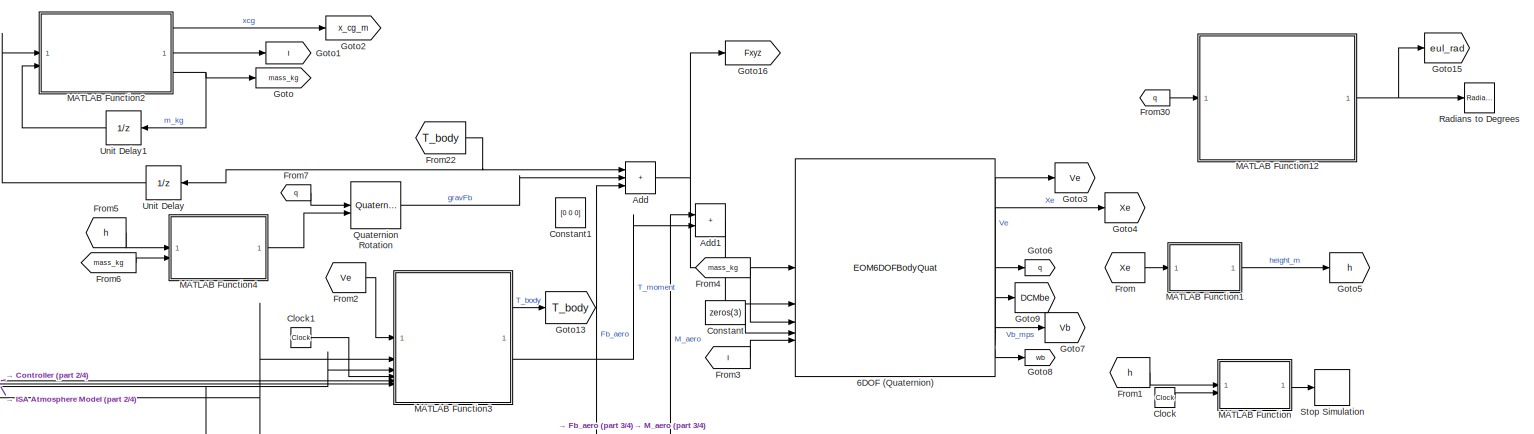
[diagram: root canvas - part 1/4, top right region]
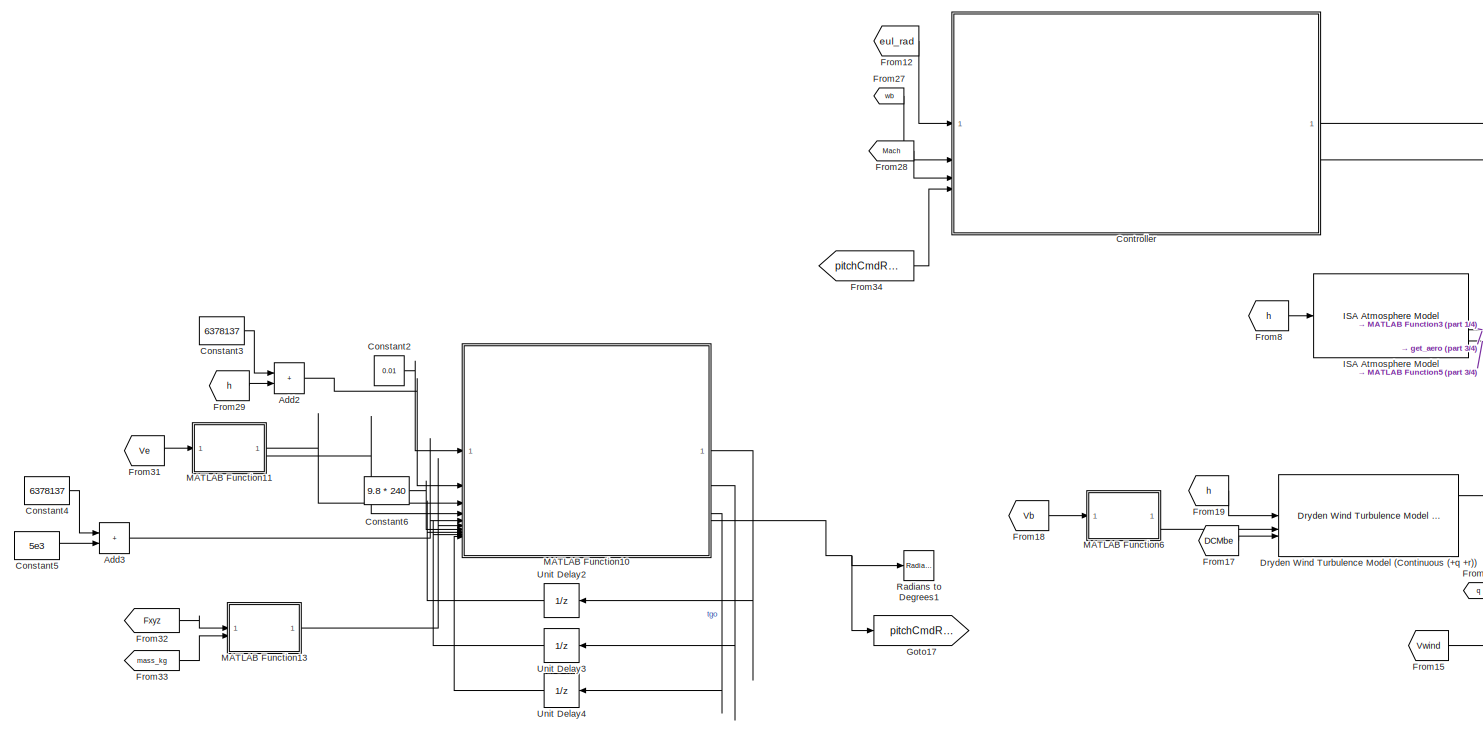
[diagram: root canvas - part 2/4, left side, full height]
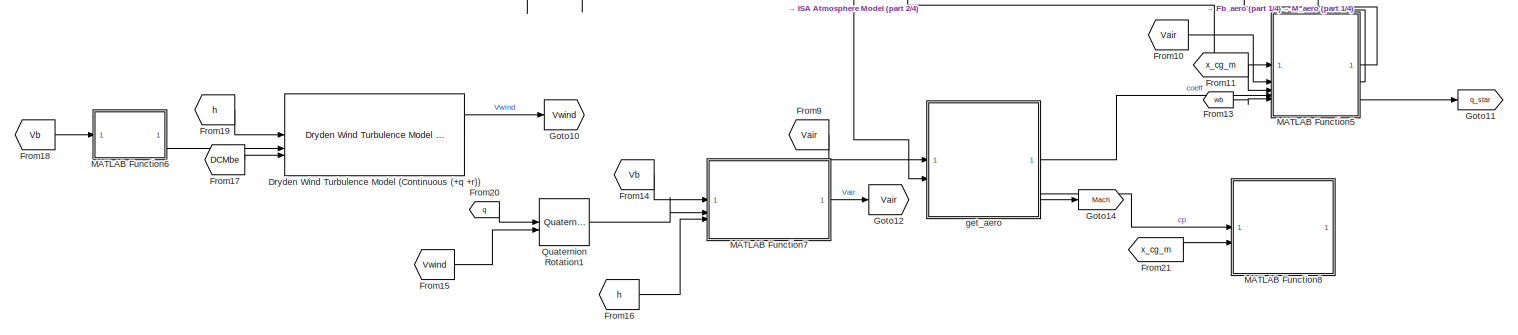
[diagram: root canvas - part 3/4, bottom center region]
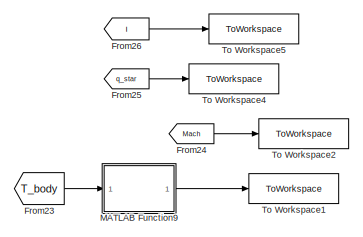
[diagram: root canvas - part 4/4, bottom right region]
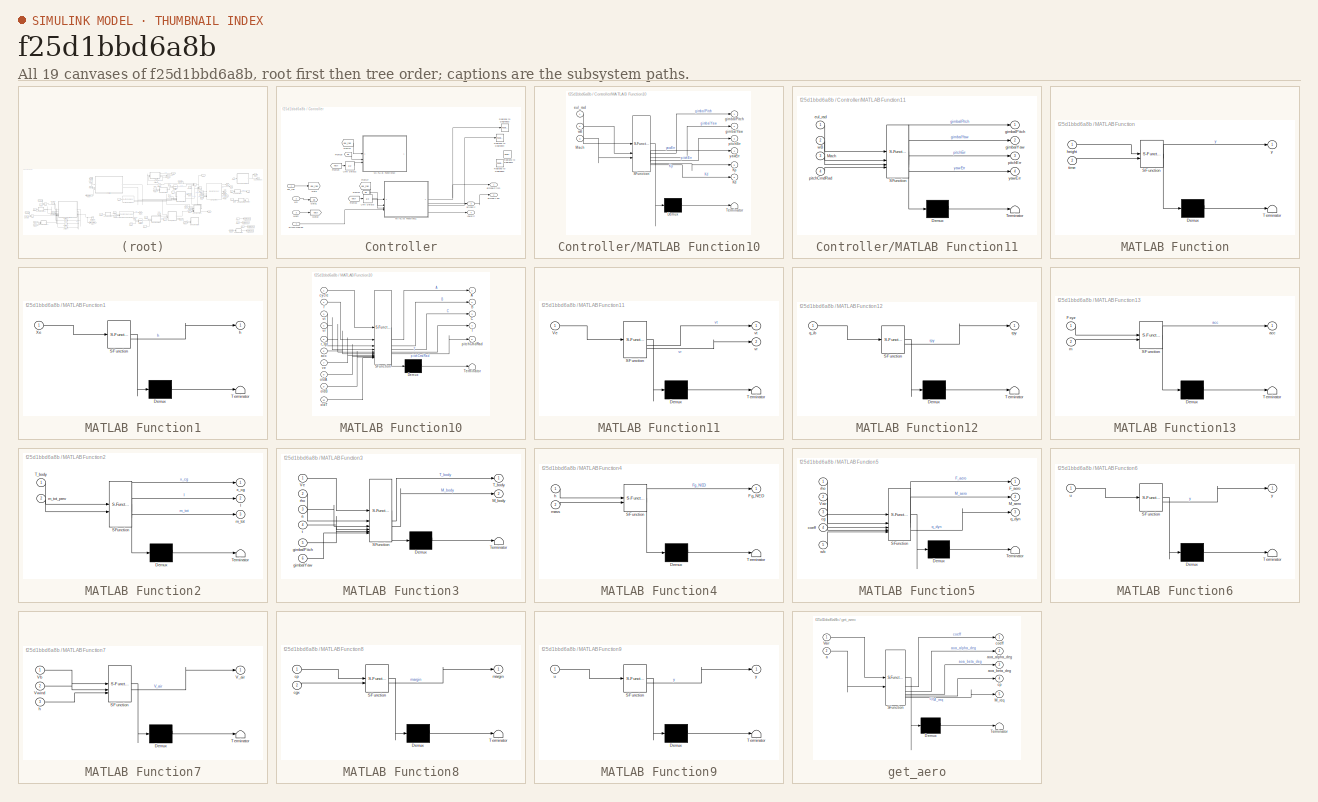
[diagram: thumbnail index - all 19 canvases of the model, root first then tree order]
MODEL slx_f25d1bbd6a8b
KIND model
CONFIG AbsTol = auto
CONFIG EnableMultiTasking = off
CONFIG FixedStep = 0.01
CONFIG MaxStep = auto
CONFIG MinStep = auto
CONFIG RelTol = 1e-3
CONFIG SampleTimeConstraint = Unconstrained
CONFIG SolverName = FixedStepAuto
CONFIG StartTime = 0.0
CONFIG StopTime = 90
WORKSPACE source: mxarray member
WORKSPACE aero_data: object (value not decoded)
WORKSPACE d_body_mc = 0.4
WORKSPACE designFocus: string (value not decoded)
WORKSPACE drydenSeed_mc = [23341 23342 23343 23344]
WORKSPACE m_initial_mc = [0 20 25 25 20 25 70 1 10 15 1 20 ... (21 elements, 1x21)]
WORKSPACE schedule: object (value not decoded)
WORKSPACE x_mc = [0 0.3 0.7 1.1 1.2 2.2 2.3 2.9 3.1 3.3 3.4 4 ... (21 elements, 1x21)]
BLOCK [EOM6DOFBodyQuat] 6DOF (Quaternion)
  Vm_0 = [0.1 0 0]
  eul_0 = [0 deg2rad(90) 0]
  mtype = Custom Variable
BLOCK [Sum] Add
  IconShape = rectangular
  Inputs = +++
BLOCK [Sum] Add1
  IconShape = rectangular
BLOCK [Sum] Add2
  IconShape = rectangular
BLOCK [Sum] Add3
  IconShape = rectangular
BLOCK [Clock] Clock
BLOCK [Clock] Clock1
BLOCK [Constant] Constant
  Value = zeros(3)
BLOCK [Constant] Constant1
  Value = [0 0 0]
BLOCK [Constant] Constant2
  Value = 0.01
BLOCK [Constant] Constant3
  Value = 6378137
BLOCK [Constant] Constant4
  Value = 6378137
BLOCK [Constant] Constant5
  Value = 5e3
BLOCK [Constant] Constant6
  Value = 9.8 * 240
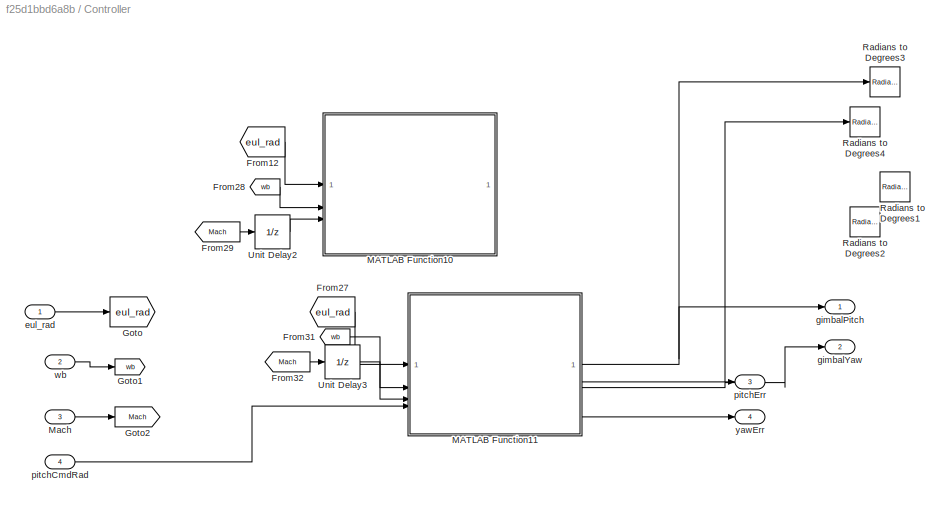
BLOCK [SubSystem] Controller
BLOCK [From] Controller/From12
  Commented = on
  GotoTag = eul_rad
BLOCK [From] Controller/From27
  GotoTag = eul_rad
BLOCK [From] Controller/From28
  Commented = on
  GotoTag = wb
BLOCK [From] Controller/From29
  Commented = on
  GotoTag = Mach
BLOCK [From] Controller/From31
  GotoTag = wb
BLOCK [From] Controller/From32
  GotoTag = Mach
BLOCK [Goto] Controller/Goto
  GotoTag = eul_rad
BLOCK [Goto] Controller/Goto1
  GotoTag = wb
BLOCK [Goto] Controller/Goto2
  GotoTag = Mach
BLOCK [SubSystem] Controller/MATLAB Function10
  Commented = on
  ErrorFcn = Stateflow.Translate.translate
  PermitHierarchicalResolution = ExplicitOnly
  SFBlockType = MATLAB Function
  TreatAsAtomicUnit = on
BLOCK [Demux] Controller/MATLAB Function10/ Demux 
  Outputs = 1
BLOCK [S-Function] Controller/MATLAB Function10/ SFunction 
  EnableBusSupport = off
  FunctionName = sf_sfun
  Parameters = schedule
  PortCounts = [3 7]
  SFcnIsStateOwnerBlock = off
  SFunctionDeploymentMode = off
  Tag = Stateflow S-Function 12
BLOCK [Terminator] Controller/MATLAB Function10/ Terminator 
BLOCK [Outport] Controller/MATLAB Function10/Kd
  Port = 6
BLOCK [Outport] Controller/MATLAB Function10/Kp
  Port = 5
BLOCK [Inport] Controller/MATLAB Function10/Mach
  Port = 3
BLOCK [Inport] Controller/MATLAB Function10/eul_rad
BLOCK [Outport] Controller/MATLAB Function10/gimbalPitch
BLOCK [Outport] Controller/MATLAB Function10/gimbalYaw
  Port = 2
BLOCK [Outport] Controller/MATLAB Function10/pitchErr
  Port = 3
BLOCK [Inport] Controller/MATLAB Function10/wB
  Port = 2
BLOCK [Outport] Controller/MATLAB Function10/yawErr
  Port = 4
BLOCK [SubSystem] Controller/MATLAB Function11
  ErrorFcn = Stateflow.Translate.translate
  PermitHierarchicalResolution = ExplicitOnly
  SFBlockType = MATLAB Function
  TreatAsAtomicUnit = on
BLOCK [Demux] Controller/MATLAB Function11/ Demux 
  Outputs = 1
BLOCK [S-Function] Controller/MATLAB Function11/ SFunction 
  EnableBusSupport = off
  FunctionName = sf_sfun
  Parameters = schedule
  PortCounts = [4 5]
  SFcnIsStateOwnerBlock = off
  SFunctionDeploymentMode = off
  Tag = Stateflow S-Function 13
BLOCK [Terminator] Controller/MATLAB Function11/ Terminator 
BLOCK [Inport] Controller/MATLAB Function11/Mach
  Port = 3
BLOCK [Inport] Controller/MATLAB Function11/eul_rad
BLOCK [Outport] Controller/MATLAB Function11/gimbalPitch
BLOCK [Outport] Controller/MATLAB Function11/gimbalYaw
  Port = 2
BLOCK [Inport] Controller/MATLAB Function11/pitchCmdRad
  Port = 4
BLOCK [Outport] Controller/MATLAB Function11/pitchErr
  Port = 3
BLOCK [Inport] Controller/MATLAB Function11/wB
  Port = 2
BLOCK [Outport] Controller/MATLAB Function11/yawErr
  Port = 4
BLOCK [Inport] Controller/Mach
  Port = 3
BLOCK [Reference] Controller/Radians to Degrees1  REF=simulink_extras/Transformations/Radians
to Degrees
  Commented = on
  SourceBlock = simulink_extras/Transformations/Radians\nto Degrees
  SourceType = RadiansToDegrees
BLOCK [Reference] Controller/Radians to Degrees2  REF=simulink_extras/Transformations/Radians
to Degrees
  Commented = on
  SourceBlock = simulink_extras/Transformations/Radians\nto Degrees
  SourceType = RadiansToDegrees
BLOCK [Reference] Controller/Radians to Degrees3  REF=simulink_extras/Transformations/Radians
to Degrees
  SourceBlock = simulink_extras/Transformations/Radians\nto Degrees
  SourceType = RadiansToDegrees
BLOCK [Reference] Controller/Radians to Degrees4  REF=simulink_extras/Transformations/Radians
to Degrees
  SourceBlock = simulink_extras/Transformations/Radians\nto Degrees
  SourceType = RadiansToDegrees
BLOCK [UnitDelay] Controller/Unit Delay2
  Commented = on
  HasFrameUpgradeWarning = on
  SampleTime = -1
BLOCK [UnitDelay] Controller/Unit Delay3
  HasFrameUpgradeWarning = on
  SampleTime = -1
BLOCK [Inport] Controller/eul_rad
BLOCK [Outport] Controller/gimbalPitch
BLOCK [Outport] Controller/gimbalYaw
  Port = 2
BLOCK [Inport] Controller/pitchCmdRad
  Port = 4
BLOCK [Outport] Controller/pitchErr
  Port = 3
BLOCK [Inport] Controller/wb
  Port = 2
BLOCK [Outport] Controller/yawErr
  Port = 4
BLOCK [Reference] Dryden Wind Turbulence Model (Continuous (+q +r))  REF=aerolibwind2/Dryden Wind Turbulence Model 
(Continuous (+q -r))
  LibrarySourceBlock = aerolibwind2/Dryden Wind Turbulence Model \n(Continuous (+q +r))
  SourceBlock = aerolibwind2/Dryden Wind Turbulence Model \n(Continuous (+q -r))
  SourceType = Wind Turbulence Model
BLOCK [From] From
  GotoTag = Xe
BLOCK [From] From1
  GotoTag = h
BLOCK [From] From10
  GotoTag = Vair
BLOCK [From] From11
  GotoTag = x_cg_m
BLOCK [From] From12
  GotoTag = eul_rad
BLOCK [From] From13
  GotoTag = wb
BLOCK [From] From14
  GotoTag = Vb
BLOCK [From] From15
  GotoTag = Vwind
BLOCK [From] From16
  GotoTag = h
BLOCK [From] From17
  GotoTag = DCMbe
BLOCK [From] From18
  GotoTag = Vb
BLOCK [From] From19
  GotoTag = h
BLOCK [From] From2
  GotoTag = Ve
BLOCK [From] From20
  GotoTag = q
BLOCK [From] From21
  GotoTag = x_cg_m
BLOCK [From] From22
  GotoTag = T_body
BLOCK [From] From23
  Commented = on
  GotoTag = T_body
BLOCK [From] From24
  Commented = on
  GotoTag = Mach
BLOCK [From] From25
  Commented = on
  GotoTag = q_star
BLOCK [From] From26
  Commented = on
  GotoTag = I
BLOCK [From] From27
  GotoTag = wb
BLOCK [From] From28
  GotoTag = Mach
BLOCK [From] From29
  GotoTag = h
BLOCK [From] From3
  GotoTag = I
BLOCK [From] From30
  GotoTag = q
BLOCK [From] From31
  GotoTag = Ve
BLOCK [From] From32
  GotoTag = Fxyz
BLOCK [From] From33
  GotoTag = mass_kg
BLOCK [From] From34
  GotoTag = pitchCmdRad
BLOCK [From] From4
  GotoTag = mass_kg
BLOCK [From] From5
  GotoTag = h
BLOCK [From] From6
  GotoTag = mass_kg
BLOCK [From] From7
  GotoTag = q
BLOCK [From] From8
  GotoTag = h
BLOCK [From] From9
  GotoTag = Vair
BLOCK [Goto] Goto
  GotoTag = mass_kg
BLOCK [Goto] Goto1
  GotoTag = I
BLOCK [Goto] Goto10
  GotoTag = Vwind
BLOCK [Goto] Goto11
  GotoTag = q_star
BLOCK [Goto] Goto12
  GotoTag = Vair
BLOCK [Goto] Goto13
  GotoTag = T_body
BLOCK [Goto] Goto14
  GotoTag = Mach
BLOCK [Goto] Goto15
  GotoTag = eul_rad
BLOCK [Goto] Goto16
  GotoTag = Fxyz
BLOCK [Goto] Goto17
  GotoTag = pitchCmdRad
BLOCK [Goto] Goto2
  GotoTag = x_cg_m
BLOCK [Goto] Goto3
  GotoTag = Ve
BLOCK [Goto] Goto4
  GotoTag = Xe
BLOCK [Goto] Goto5
  GotoTag = h
BLOCK [Goto] Goto6
  GotoTag = q
BLOCK [Goto] Goto7
  GotoTag = Vb
BLOCK [Goto] Goto8
  GotoTag = wb
BLOCK [Goto] Goto9
  GotoTag = DCMbe
BLOCK [Reference] ISA Atmosphere Model  REF=aerolibatmos2/ISA Atmosphere Model
  SourceBlock = aerolibatmos2/ISA Atmosphere Model
  SourceType = International Standard Atmosphere Model
BLOCK [SubSystem] MATLAB Function
  ErrorFcn = Stateflow.Translate.translate
  PermitHierarchicalResolution = ExplicitOnly
  SFBlockType = MATLAB Function
  TreatAsAtomicUnit = on
BLOCK [Demux] MATLAB Function/ Demux 
  Outputs = 1
BLOCK [S-Function] MATLAB Function/ SFunction 
  EnableBusSupport = off
  FunctionName = sf_sfun
  PortCounts = [2 2]
  SFcnIsStateOwnerBlock = off
  SFunctionDeploymentMode = off
  Tag = Stateflow S-Function 3
BLOCK [Terminator] MATLAB Function/ Terminator 
BLOCK [Inport] MATLAB Function/height
BLOCK [Inport] MATLAB Function/time
  Port = 2
BLOCK [Outport] MATLAB Function/y
BLOCK [SubSystem] MATLAB Function1
  ErrorFcn = Stateflow.Translate.translate
  PermitHierarchicalResolution = ExplicitOnly
  SFBlockType = MATLAB Function
  TreatAsAtomicUnit = on
BLOCK [Demux] MATLAB Function1/ Demux 
  Outputs = 1
BLOCK [S-Function] MATLAB Function1/ SFunction 
  EnableBusSupport = off
  FunctionName = sf_sfun
  PortCounts = [1 2]
  SFcnIsStateOwnerBlock = off
  SFunctionDeploymentMode = off
  Tag = Stateflow S-Function 2
BLOCK [Terminator] MATLAB Function1/ Terminator 
BLOCK [Inport] MATLAB Function1/Xe
BLOCK [Outport] MATLAB Function1/h
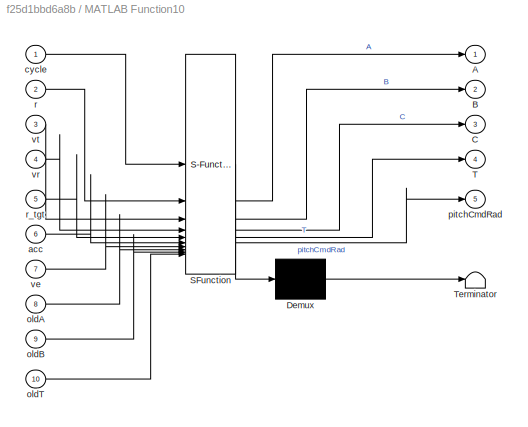
BLOCK [SubSystem] MATLAB Function10
  ErrorFcn = Stateflow.Translate.translate
  PermitHierarchicalResolution = ExplicitOnly
  SFBlockType = MATLAB Function
  TreatAsAtomicUnit = on
BLOCK [Demux] MATLAB Function10/ Demux 
  Outputs = 1
BLOCK [S-Function] MATLAB Function10/ SFunction 
  EnableBusSupport = off
  FunctionName = sf_sfun
  PortCounts = [10 6]
  SFcnIsStateOwnerBlock = off
  SFunctionDeploymentMode = off
  Tag = Stateflow S-Function 15
BLOCK [Terminator] MATLAB Function10/ Terminator 
BLOCK [Outport] MATLAB Function10/A
BLOCK [Outport] MATLAB Function10/B
  Port = 2
BLOCK [Outport] MATLAB Function10/C
  Port = 3
BLOCK [Outport] MATLAB Function10/T
  Port = 4
BLOCK [Inport] MATLAB Function10/acc
  Port = 6
BLOCK [Inport] MATLAB Function10/cycle
BLOCK [Inport] MATLAB Function10/oldA
  Port = 8
BLOCK [Inport] MATLAB Function10/oldB
  Port = 9
BLOCK [Inport] MATLAB Function10/oldT
  Port = 10
BLOCK [Outport] MATLAB Function10/pitchCmdRad
  Port = 5
BLOCK [Inport] MATLAB Function10/r
  Port = 2
BLOCK [Inport] MATLAB Function10/r_tgt
  Port = 5
BLOCK [Inport] MATLAB Function10/ve
  Port = 7
BLOCK [Inport] MATLAB Function10/vr
  Port = 4
BLOCK [Inport] MATLAB Function10/vt
  Port = 3
BLOCK [SubSystem] MATLAB Function11
  ErrorFcn = Stateflow.Translate.translate
  PermitHierarchicalResolution = ExplicitOnly
  SFBlockType = MATLAB Function
  TreatAsAtomicUnit = on
BLOCK [Demux] MATLAB Function11/ Demux 
  Outputs = 1
BLOCK [S-Function] MATLAB Function11/ SFunction 
  EnableBusSupport = off
  FunctionName = sf_sfun
  PortCounts = [1 3]
  SFcnIsStateOwnerBlock = off
  SFunctionDeploymentMode = off
  Tag = Stateflow S-Function 16
BLOCK [Terminator] MATLAB Function11/ Terminator 
BLOCK [Inport] MATLAB Function11/Ve
BLOCK [Outport] MATLAB Function11/vr
  Port = 2
BLOCK [Outport] MATLAB Function11/vt
BLOCK [SubSystem] MATLAB Function12
  ErrorFcn = Stateflow.Translate.translate
  PermitHierarchicalResolution = ExplicitOnly
  SFBlockType = MATLAB Function
  TreatAsAtomicUnit = on
BLOCK [Demux] MATLAB Function12/ Demux 
  Outputs = 1
BLOCK [S-Function] MATLAB Function12/ SFunction 
  EnableBusSupport = off
  FunctionName = sf_sfun
  PortCounts = [1 2]
  SFcnIsStateOwnerBlock = off
  SFunctionDeploymentMode = off
  Tag = Stateflow S-Function 14
BLOCK [Terminator] MATLAB Function12/ Terminator 
BLOCK [Inport] MATLAB Function12/q_ib
BLOCK [Outport] MATLAB Function12/rpy
BLOCK [SubSystem] MATLAB Function13
  ErrorFcn = Stateflow.Translate.translate
  PermitHierarchicalResolution = ExplicitOnly
  SFBlockType = MATLAB Function
  TreatAsAtomicUnit = on
BLOCK [Demux] MATLAB Function13/ Demux 
  Outputs = 1
BLOCK [S-Function] MATLAB Function13/ SFunction 
  EnableBusSupport = off
  FunctionName = sf_sfun
  PortCounts = [2 2]
  SFcnIsStateOwnerBlock = off
  SFunctionDeploymentMode = off
  Tag = Stateflow S-Function 17
BLOCK [Terminator] MATLAB Function13/ Terminator 
BLOCK [Inport] MATLAB Function13/Fxyz
BLOCK [Outport] MATLAB Function13/acc
BLOCK [Inport] MATLAB Function13/m
  Port = 2
BLOCK [SubSystem] MATLAB Function2
  ErrorFcn = Stateflow.Translate.translate
  PermitHierarchicalResolution = ExplicitOnly
  SFBlockType = MATLAB Function
  TreatAsAtomicUnit = on
BLOCK [Demux] MATLAB Function2/ Demux 
  Outputs = 1
BLOCK [S-Function] MATLAB Function2/ SFunction 
  EnableBusSupport = off
  FunctionName = sf_sfun
  Parameters = m_initial_mc,x_mc
  PortCounts = [2 4]
  SFcnIsStateOwnerBlock = off
  SFunctionDeploymentMode = off
  Tag = Stateflow S-Function 1
BLOCK [Terminator] MATLAB Function2/ Terminator 
BLOCK [Outport] MATLAB Function2/I
  Port = 2
BLOCK [Inport] MATLAB Function2/T_body
BLOCK [Outport] MATLAB Function2/m_tot
  Port = 3
BLOCK [Inport] MATLAB Function2/m_tot_prev
  Port = 2
BLOCK [Outport] MATLAB Function2/x_cg
BLOCK [SubSystem] MATLAB Function3
  ErrorFcn = Stateflow.Translate.translate
  PermitHierarchicalResolution = ExplicitOnly
  SFBlockType = MATLAB Function
  TreatAsAtomicUnit = on
BLOCK [Demux] MATLAB Function3/ Demux 
  Outputs = 1
BLOCK [S-Function] MATLAB Function3/ SFunction 
  EnableBusSupport = off
  FunctionName = sf_sfun
  PortCounts = [6 3]
  SFcnIsStateOwnerBlock = off
  SFunctionDeploymentMode = off
  Tag = Stateflow S-Function 5
BLOCK [Terminator] MATLAB Function3/ Terminator 
BLOCK [Outport] MATLAB Function3/M_body
  Port = 2
BLOCK [Outport] MATLAB Function3/T_body
BLOCK [Inport] MATLAB Function3/Ve
BLOCK [Inport] MATLAB Function3/a
  Port = 3
BLOCK [Inport] MATLAB Function3/gimbalPitch
  Port = 5
BLOCK [Inport] MATLAB Function3/gimbalYaw
  Port = 6
BLOCK [Inport] MATLAB Function3/rho
  Port = 2
BLOCK [Inport] MATLAB Function3/t
  Port = 4
BLOCK [SubSystem] MATLAB Function4
  ErrorFcn = Stateflow.Translate.translate
  PermitHierarchicalResolution = ExplicitOnly
  SFBlockType = MATLAB Function
  TreatAsAtomicUnit = on
BLOCK [Demux] MATLAB Function4/ Demux 
  Outputs = 1
BLOCK [S-Function] MATLAB Function4/ SFunction 
  EnableBusSupport = off
  FunctionName = sf_sfun
  PortCounts = [2 2]
  SFcnIsStateOwnerBlock = off
  SFunctionDeploymentMode = off
  Tag = Stateflow S-Function 4
BLOCK [Terminator] MATLAB Function4/ Terminator 
BLOCK [Outport] MATLAB Function4/Fg_NED
BLOCK [Inport] MATLAB Function4/h
BLOCK [Inport] MATLAB Function4/mass
  Port = 2
BLOCK [SubSystem] MATLAB Function5
  ErrorFcn = Stateflow.Translate.translate
  PermitHierarchicalResolution = ExplicitOnly
  SFBlockType = MATLAB Function
  TreatAsAtomicUnit = on
BLOCK [Demux] MATLAB Function5/ Demux 
  Outputs = 1
BLOCK [S-Function] MATLAB Function5/ SFunction 
  EnableBusSupport = off
  FunctionName = sf_sfun
  Parameters = d_body_mc
  PortCounts = [5 4]
  SFcnIsStateOwnerBlock = off
  SFunctionDeploymentMode = off
  Tag = Stateflow S-Function 6
BLOCK [Terminator] MATLAB Function5/ Terminator 
BLOCK [Outport] MATLAB Function5/F_aero
BLOCK [Outport] MATLAB Function5/M_aero
  Port = 2
BLOCK [Inport] MATLAB Function5/Vair
  Port = 2
BLOCK [Inport] MATLAB Function5/cg
  Port = 3
BLOCK [Inport] MATLAB Function5/coeff
  Port = 4
BLOCK [Outport] MATLAB Function5/q_dyn
  Port = 3
BLOCK [Inport] MATLAB Function5/rho
BLOCK [Inport] MATLAB Function5/wb
  Port = 5
BLOCK [SubSystem] MATLAB Function6
  ErrorFcn = Stateflow.Translate.translate
  PermitHierarchicalResolution = ExplicitOnly
  SFBlockType = MATLAB Function
  TreatAsAtomicUnit = on
BLOCK [Demux] MATLAB Function6/ Demux 
  Outputs = 1
BLOCK [S-Function] MATLAB Function6/ SFunction 
  EnableBusSupport = off
  FunctionName = sf_sfun
  PortCounts = [1 2]
  SFcnIsStateOwnerBlock = off
  SFunctionDeploymentMode = off
  Tag = Stateflow S-Function 8
BLOCK [Terminator] MATLAB Function6/ Terminator 
BLOCK [Inport] MATLAB Function6/u
BLOCK [Outport] MATLAB Function6/y
BLOCK [SubSystem] MATLAB Function7
  ErrorFcn = Stateflow.Translate.translate
  PermitHierarchicalResolution = ExplicitOnly
  SFBlockType = MATLAB Function
  TreatAsAtomicUnit = on
BLOCK [Demux] MATLAB Function7/ Demux 
  Outputs = 1
BLOCK [S-Function] MATLAB Function7/ SFunction 
  EnableBusSupport = off
  FunctionName = sf_sfun
  PortCounts = [3 2]
  SFcnIsStateOwnerBlock = off
  SFunctionDeploymentMode = off
  Tag = Stateflow S-Function 7
BLOCK [Terminator] MATLAB Function7/ Terminator 
BLOCK [Outport] MATLAB Function7/V_air
BLOCK [Inport] MATLAB Function7/Vb
BLOCK [Inport] MATLAB Function7/Vwind
  Port = 2
BLOCK [Inport] MATLAB Function7/h
  Port = 3
BLOCK [SubSystem] MATLAB Function8
  ErrorFcn = Stateflow.Translate.translate
  PermitHierarchicalResolution = ExplicitOnly
  SFBlockType = MATLAB Function
  TreatAsAtomicUnit = on
BLOCK [Demux] MATLAB Function8/ Demux 
  Outputs = 1
BLOCK [S-Function] MATLAB Function8/ SFunction 
  EnableBusSupport = off
  FunctionName = sf_sfun
  Parameters = d_body_mc
  PortCounts = [2 2]
  SFcnIsStateOwnerBlock = off
  SFunctionDeploymentMode = off
  Tag = Stateflow S-Function 10
BLOCK [Terminator] MATLAB Function8/ Terminator 
BLOCK [Inport] MATLAB Function8/cgx
  Port = 2
BLOCK [Inport] MATLAB Function8/cp
BLOCK [Outport] MATLAB Function8/margin
BLOCK [SubSystem] MATLAB Function9
  Commented = on
  ErrorFcn = Stateflow.Translate.translate
  PermitHierarchicalResolution = ExplicitOnly
  SFBlockType = MATLAB Function
  TreatAsAtomicUnit = on
BLOCK [Demux] MATLAB Function9/ Demux 
  Outputs = 1
BLOCK [S-Function] MATLAB Function9/ SFunction 
  EnableBusSupport = off
  FunctionName = sf_sfun
  PortCounts = [1 2]
  SFcnIsStateOwnerBlock = off
  SFunctionDeploymentMode = off
  Tag = Stateflow S-Function 11
BLOCK [Terminator] MATLAB Function9/ Terminator 
BLOCK [Inport] MATLAB Function9/u
BLOCK [Outport] MATLAB Function9/y
BLOCK [Reference] Quaternion Rotation  REF=aerolibutil/Quaternion
Rotation
  SourceBlock = aerolibutil/Quaternion\nRotation
  SourceType = Quaternion Rotation
BLOCK [Reference] Quaternion Rotation1  REF=aerolibutil/Quaternion
Rotation
  SourceBlock = aerolibutil/Quaternion\nRotation
  SourceType = Quaternion Rotation
BLOCK [Reference] Radians to Degrees  REF=simulink_extras/Transformations/Radians
to Degrees
  SourceBlock = simulink_extras/Transformations/Radians\nto Degrees
  SourceType = RadiansToDegrees
BLOCK [Reference] Radians to Degrees1  REF=simulink_extras/Transformations/Radians
to Degrees
  SourceBlock = simulink_extras/Transformations/Radians\nto Degrees
  SourceType = RadiansToDegrees
BLOCK [Stop] Stop Simulation
BLOCK [ToWorkspace] To Workspace1
  Commented = on
  FixptAsFi = on
  MaxDataPoints = inf
  SampleTime = -1
  SaveFormat = Timeseries
  VariableName = thrust
BLOCK [ToWorkspace] To Workspace2
  Commented = on
  FixptAsFi = on
  MaxDataPoints = inf
  SampleTime = -1
  SaveFormat = Timeseries
  VariableName = mach
BLOCK [ToWorkspace] To Workspace4
  Commented = on
  FixptAsFi = on
  MaxDataPoints = inf
  SampleTime = -1
  SaveFormat = Timeseries
  VariableName = q_star
BLOCK [ToWorkspace] To Workspace5
  Commented = on
  FixptAsFi = on
  MaxDataPoints = inf
  SampleTime = -1
  SaveFormat = Timeseries
  VariableName = Iyy
BLOCK [UnitDelay] Unit Delay
  HasFrameUpgradeWarning = on
  InitialCondition = [0 0 0]
  SampleTime = -1
BLOCK [UnitDelay] Unit Delay1
  HasFrameUpgradeWarning = on
  InitialCondition = 439
  SampleTime = -1
BLOCK [UnitDelay] Unit Delay2
  HasFrameUpgradeWarning = on
  SampleTime = -1
BLOCK [UnitDelay] Unit Delay3
  HasFrameUpgradeWarning = on
  SampleTime = -1
BLOCK [UnitDelay] Unit Delay4
  HasFrameUpgradeWarning = on
  InitialCondition = 90
  SampleTime = -1
BLOCK [SubSystem] get_aero
  ErrorFcn = Stateflow.Translate.translate
  PermitHierarchicalResolution = ExplicitOnly
  SFBlockType = MATLAB Function
  TreatAsAtomicUnit = on
BLOCK [Demux] get_aero/ Demux 
  Outputs = 1
BLOCK [S-Function] get_aero/ SFunction 
  EnableBusSupport = off
  FunctionName = sf_sfun
  PortCounts = [2 6]
  SFcnIsStateOwnerBlock = off
  SFunctionDeploymentMode = off
  Tag = Stateflow S-Function 9
BLOCK [Terminator] get_aero/ Terminator 
BLOCK [Outport] get_aero/M_req
  Port = 5
BLOCK [Inport] get_aero/Vair
BLOCK [Inport] get_aero/a
  Port = 2
BLOCK [Outport] get_aero/aoa_alpha_deg
  Port = 2
BLOCK [Outport] get_aero/aoa_beta_deg
  Port = 3
BLOCK [Outport] get_aero/coeff
BLOCK [Outport] get_aero/cp
  Port = 4
LINE 6DOF (Quaternion):1 -> Goto3:1
LINE 6DOF (Quaternion):2 -> Goto4:1
LINE 6DOF (Quaternion):4 -> Goto6:1
LINE 6DOF (Quaternion):5 -> Goto9:1
LINE 6DOF (Quaternion):6 -> Goto7:1
LINE 6DOF (Quaternion):7 -> Goto8:1
LINE Add1:1 -> 6DOF (Quaternion):2
LINE Add2:1 -> MATLAB Function10:2
LINE Add3:1 -> MATLAB Function10:5
NET Add:1 -> 6DOF (Quaternion):1, Goto16:1
LINE Clock1:1 -> MATLAB Function3:4
LINE Clock:1 -> MATLAB Function:2
LINE Constant2:1 -> MATLAB Function10:1
LINE Constant3:1 -> Add2:1
LINE Constant4:1 -> Add3:1
LINE Constant5:1 -> Add3:2
LINE Constant6:1 -> MATLAB Function10:7
LINE Constant:1 -> 6DOF (Quaternion):4
LINE Controller/From12:1 -> Controller/MATLAB Function10:1
LINE Controller/From27:1 -> Controller/MATLAB Function11:1
LINE Controller/From28:1 -> Controller/MATLAB Function10:2
LINE Controller/From29:1 -> Controller/Unit Delay2:1
LINE Controller/From31:1 -> Controller/MATLAB Function11:2
LINE Controller/From32:1 -> Controller/Unit Delay3:1
NET Controller/MATLAB Function11:1 -> Controller/Radians to Degrees3:1, Controller/gimbalPitch:1
NET Controller/MATLAB Function11:2 -> Controller/Radians to Degrees4:1, Controller/gimbalYaw:1
LINE Controller/MATLAB Function11:3 -> Controller/pitchErr:1
LINE Controller/MATLAB Function11:4 -> Controller/yawErr:1
LINE Controller/Mach:1 -> Controller/Goto2:1
LINE Controller/Unit Delay2:1 -> Controller/MATLAB Function10:3
LINE Controller/Unit Delay3:1 -> Controller/MATLAB Function11:3
LINE Controller/eul_rad:1 -> Controller/Goto:1
LINE Controller/pitchCmdRad:1 -> Controller/MATLAB Function11:4
LINE Controller/wb:1 -> Controller/Goto1:1
LINE Controller:1 -> MATLAB Function3:5
LINE Controller:2 -> MATLAB Function3:6
LINE Dryden Wind Turbulence Model (Continuous (+q +r)):1 -> Goto10:1
LINE From10:1 -> MATLAB Function5:2
LINE From11:1 -> MATLAB Function5:3
LINE From12:1 -> Controller:1
LINE From13:1 -> MATLAB Function5:5
LINE From14:1 -> MATLAB Function7:1
LINE From15:1 -> Quaternion Rotation1:2
LINE From16:1 -> MATLAB Function7:3
LINE From17:1 -> Dryden Wind Turbulence Model (Continuous (+q +r)):3
LINE From18:1 -> MATLAB Function6:1
LINE From19:1 -> Dryden Wind Turbulence Model (Continuous (+q +r)):1
LINE From1:1 -> MATLAB Function:1
LINE From20:1 -> Quaternion Rotation1:1
LINE From21:1 -> MATLAB Function8:2
NET From22:1 -> Add:1, Unit Delay:1
LINE From23:1 -> MATLAB Function9:1
LINE From24:1 -> To Workspace2:1
LINE From25:1 -> To Workspace4:1
LINE From26:1 -> To Workspace5:1
LINE From27:1 -> Controller:2
LINE From28:1 -> Controller:3
LINE From29:1 -> Add2:2
LINE From2:1 -> MATLAB Function3:1
LINE From30:1 -> MATLAB Function12:1
LINE From31:1 -> MATLAB Function11:1
LINE From32:1 -> MATLAB Function13:1
LINE From33:1 -> MATLAB Function13:2
LINE From34:1 -> Controller:4
LINE From3:1 -> 6DOF (Quaternion):5
LINE From4:1 -> 6DOF (Quaternion):3
LINE From5:1 -> MATLAB Function4:1
LINE From6:1 -> MATLAB Function4:2
LINE From7:1 -> Quaternion Rotation:1
LINE From8:1 -> ISA Atmosphere Model:1
LINE From9:1 -> get_aero:1
LINE From:1 -> MATLAB Function1:1
NET ISA Atmosphere Model:2 -> MATLAB Function3:3, get_aero:2
NET ISA Atmosphere Model:4 -> MATLAB Function3:2, MATLAB Function5:1
LINE MATLAB Function10:1 -> Unit Delay2:1
LINE MATLAB Function10:2 -> Unit Delay3:1
LINE MATLAB Function10:4 -> Unit Delay4:1
NET MATLAB Function10:5 -> Goto17:1, Radians to Degrees1:1
LINE MATLAB Function11:1 -> MATLAB Function10:3
LINE MATLAB Function11:2 -> MATLAB Function10:4
NET MATLAB Function12:1 -> Goto15:1, Radians to Degrees:1
LINE MATLAB Function13:1 -> MATLAB Function10:6
LINE MATLAB Function1:1 -> Goto5:1
LINE MATLAB Function2:1 -> Goto2:1
LINE MATLAB Function2:2 -> Goto1:1
NET MATLAB Function2:3 -> Goto:1, Unit Delay1:1
LINE MATLAB Function3:1 -> Goto13:1
LINE MATLAB Function3:2 -> Add1:2
LINE MATLAB Function4:1 -> Quaternion Rotation:2
LINE MATLAB Function5:1 -> Add:3
LINE MATLAB Function5:2 -> Add1:1
LINE MATLAB Function5:3 -> Goto11:1
LINE MATLAB Function6:1 -> Dryden Wind Turbulence Model (Continuous (+q +r)):2
LINE MATLAB Function7:1 -> Goto12:1
LINE MATLAB Function9:1 -> To Workspace1:1
LINE MATLAB Function:1 -> Stop Simulation:1
LINE Quaternion Rotation1:1 -> MATLAB Function7:2
LINE Quaternion Rotation:1 -> Add:2
LINE Unit Delay1:1 -> MATLAB Function2:2
LINE Unit Delay2:1 -> MATLAB Function10:8
LINE Unit Delay3:1 -> MATLAB Function10:9
LINE Unit Delay4:1 -> MATLAB Function10:10
LINE Unit Delay:1 -> MATLAB Function2:1
LINE get_aero:1 -> MATLAB Function5:4
LINE get_aero:4 -> MATLAB Function8:1
LINE get_aero:5 -> Goto14:1
note: NET lines group one-source signal fan-out (src -> all destinations, sorted); 1:1 wires keep LINE
CHART MATLAB Function6 states=1 transitions=1
  STATE_LABEL 'eML_blk_kernel()'
  STATE_LABEL 'SCRIPT:\nfunction y = twonorm(u)\n\ny = norm(u);\n'
CHART get_aero states=1 transitions=1
  STATE_LABEL 'eML_blk_kernel()'
  STATE_LABEL 'SCRIPT:\nfunction [coeff, aoa_alpha_deg, aoa_beta_deg, cp, M_req] = get_aero(Vair, a)\n\n    u = Vair(1);\n    v = Vair(2);\n    w = Vair(3);\n\n    V = sqrt(u*u + v*v + w*w);\n\n    if V < 1e-6\n        coeff = zeros(4,1);\n        aoa_alpha_deg = 0;\n        aoa_beta_deg  = 0;\n        cp = 0;\n        M_req = 0;\n        return;\n    end\n\n    % Alpha / beta\n    alpha = atan2(w, u);\n    Vxz   = sqrt(u*u + w*w);...<+2041ch>'
CHART MATLAB Function8 states=1 transitions=1
  STATE_LABEL 'eML_blk_kernel()'
  STATE_LABEL 'SCRIPT:\nfunction margin  = stabilitymargin(cp, cgx, d_body_mc)\n\n\nmargin = (cp-cgx)/d_body_mc;\n\n'
CHART MATLAB Function9 states=1 transitions=1
  STATE_LABEL 'eML_blk_kernel()'
  STATE_LABEL 'SCRIPT:\nfunction y = fcn(u)\n\ny = norm(u);'
CHART Controller/MATLAB Function10 states=1 transitions=1
  STATE_LABEL 'eML_blk_kernel()'
  STATE_LABEL 'SCRIPT:\nfunction [gimbalPitch, gimbalYaw, pitchErr, yawErr, Kp, Kd] = tvc_gainsched_eulXYZ_pd(eul_rad, wB, Mach, schedule)\n% Gain-scheduled TVC PD controller using Euler attitude error (XYZ order).\n% eul_rad is assumed to be Euler angles RELATIVE TO THE VERTICAL reference,\n% so the desired attitude corresponds to eul_rad = [0;0;0] (or [0 0 0]).\n%\n% Euler order: XYZ\n%   eul_rad(1) = roll  about bod...<+1479ch>'
CHART Controller/MATLAB Function11 states=1 transitions=1
  STATE_LABEL 'eML_blk_kernel()'
  STATE_LABEL 'SCRIPT:\nfunction [gimbalPitch, gimbalYaw, pitchErr, yawErr] = tvc_gainsched_eulXYZ_lqr(eul_rad, wB, Mach, schedule, pitchCmdRad)\n% Gain-scheduled TVC "LQR-style" controller using Euler error angles (XYZ).\n% eul_rad is relative-to-vertical error, so desired = [0;0;0].\n%pitchCmdRad = 0;\ngimbalLimit = deg2rad(6);\n\n% ----- Nearest Mach lookup -----\nn = numel(schedule);\nMach_grid = zeros(n,1);\nK_table ...<+783ch>'
CHART MATLAB Function12 states=1 transitions=1
  STATE_LABEL 'eML_blk_kernel()'
  STATE_LABEL 'SCRIPT:\nfunction rpy = qib_to_rpy_vs_vertical(q_ib)\n% q_ib_to_rpy_vs_vertical\n% q_ib: quaternion (i -> b), NED inertial, scalar-first [w x y z]\'\n% rpy: [roll; pitch; yaw] in radians, relative to "vertical/up"\n\n% ---- Normalize quaternion ----\nq = q_ib(:);\nq = q ./ max(1e-12, norm(q));\n\nq0 = q(1); q1 = q(2); q2 = q(3); q3 = q(4);\n\n% ---- Quaternion to DCM (i -> b) ----\nC_ib = [ ...\n    1-2*(q2^2+q3...<+854ch>'
CHART MATLAB Function10 states=1 transitions=1
  STATE_LABEL 'eML_blk_kernel()'
  STATE_LABEL 'SCRIPT:\nfunction [A,B,C,T,pitchCmdRad] = poweredExplicitGuidance(cycle, r, vt, vr, r_tgt, acc, ve, oldA, oldB, oldT)\n%#codegen\n% r and r_tgt are RADII from body center [m]\n\nmu = 3.986004418e14;  % [m^3/s^2] Earth\n\n% guards\nacc = max(acc, 1e-3);\noldT = max(oldT, 1e-3);\n\ntau = ve / acc;\n\n% If oldA/oldB uninitialized, estimate from oldT\nif oldA==0 && oldB==0\n    Tuse = min(oldT, 0.999*tau);\n    b0 = ...<+1204ch>'
CHART MATLAB Function11 states=1 transitions=1
  STATE_LABEL 'eML_blk_kernel()'
  STATE_LABEL 'SCRIPT:\nfunction [vt, vr]  = fcn(Ve)\n\nvt = Ve(1);\nvr = -Ve(3);\n'
CHART MATLAB Function13 states=1 transitions=1
  STATE_LABEL 'eML_blk_kernel()'
  STATE_LABEL 'SCRIPT:\nfunction acc = fcn(Fxyz, m)\n\nacc = norm(Fxyz)/m;\n'
CHART MATLAB Function2 states=1 transitions=1
  STATE_LABEL 'eML_blk_kernel()'
  STATE_LABEL 'SCRIPT:\nfunction [x_cg, I, m_tot] = MassProps(T_body, m_tot_prev, x_mc, m_initial_mc)\n\n    x = x_mc;\n    m_initial = m_initial_mc;\n    d = 0.4;\n\n    persistent m0 x_cg0 Ixx0 Iyy0 initialized\n    if isempty(initialized)\n        m0    = sum(m_initial);\n        x_cg0 = sum(m_initial .* x) / m0;\n\n        r    = x - x_cg0;\n        Iyy0 = sum(m_initial .* r.^2);\n        Ixx0 = 0.5 * m0 * (d/2)^2;\n\n     ...<+496ch>'
CHART MATLAB Function1 states=1 transitions=1
  STATE_LABEL 'eML_blk_kernel()'
  STATE_LABEL 'SCRIPT:\nfunction h = fcn(Xe)\n\nh = -Xe(3);\n'
CHART MATLAB Function states=1 transitions=1
  STATE_LABEL 'eML_blk_kernel()'
  STATE_LABEL 'SCRIPT:\nfunction y = fcn(height, time)\n\nif time > 10 && height < 0\n    y = 1;\nelse\n    y = 0;\nend'
CHART MATLAB Function4 states=1 transitions=1
  STATE_LABEL 'eML_blk_kernel()'
  STATE_LABEL 'SCRIPT:\nfunction Fg_NED = grav(h, mass)\n\nR = 6378137;\n\ng = 9.80665 * (R/(R + h))^2;\n\nFg_NED = [0; 0; mass*g];\nend\n'
CHART MATLAB Function3 states=1 transitions=1
  STATE_LABEL 'eML_blk_kernel()'
  STATE_LABEL 'SCRIPT:\nfunction [T_body, M_body] = thrust(Ve, rho, a, t, gimbalPitch, gimbalYaw)\n\n    %% ----- USER CONSTANT -----\n    ell = 3.3317;   % [m] engine distance behind CG (positive)\n    %% -------------------------\n\n    V = norm(Ve);\n\n    % ----- Thrust magnitude model (unchanged) -----\n    T_SL = 15.5e3;\n    rho0 = 1.225;\n    n    = 0.7;\n    k_M  = 0.3;\n\n    if a > 0\n        M = V / a;\n    else\n    ...<+1039ch>'
CHART MATLAB Function5 states=1 transitions=1
  STATE_LABEL 'eML_blk_kernel()'
  STATE_LABEL 'SCRIPT:\nfunction [F_aero, M_aero, q_dyn] = fcn(rho, Vair, cg, coeff, wb, d_body_mc)\n\n\n\n    CD = coeff(1);\n    CLa = coeff(2);\n    CLb = coeff(3);\n    CP  = coeff(4);\n\n    u = Vair(1);\n    v = Vair(2);\n    w = Vair(3);\n\n    V = sqrt(u*u + v*v + w*w);\n\n    p = wb(1);\n    q = wb(2);\n    r = wb(3);\n \n    % Angles\n    alpha = atan2(w, u);\n    Vxz   = sqrt(u*u + w*w);\n\n    if Vxz < 1e-6\n        beta = 0...<+781ch>'
CHART MATLAB Function7 states=1 transitions=1
  STATE_LABEL 'eML_blk_kernel()'
  STATE_LABEL 'SCRIPT:\nfunction V_air = effectiveAirspeed(Vb, Vwind, h)\n\n    if h > 10\n        V_air = Vb - Vwind;\n    else\n        V_air = Vb;\n    end\n    %V_air = Vb;\nend\n'
CHART  states=0 transitions=0
CHART  states=0 transitions=0
CHART  states=0 transitions=0
CHART  states=0 transitions=0
CHART  states=0 transitions=0
CHART  states=0 transitions=0
CHART  states=0 transitions=0
CHART  states=0 transitions=0
CHART  states=0 transitions=0
CHART  states=0 transitions=0
CHART  states=0 transitions=0
CHART  states=0 transitions=0
CHART  states=0 transitions=0
CHART  states=0 transitions=0
CHART  states=0 transitions=0
CHART  states=0 transitions=0
CHART  states=0 transitions=0
